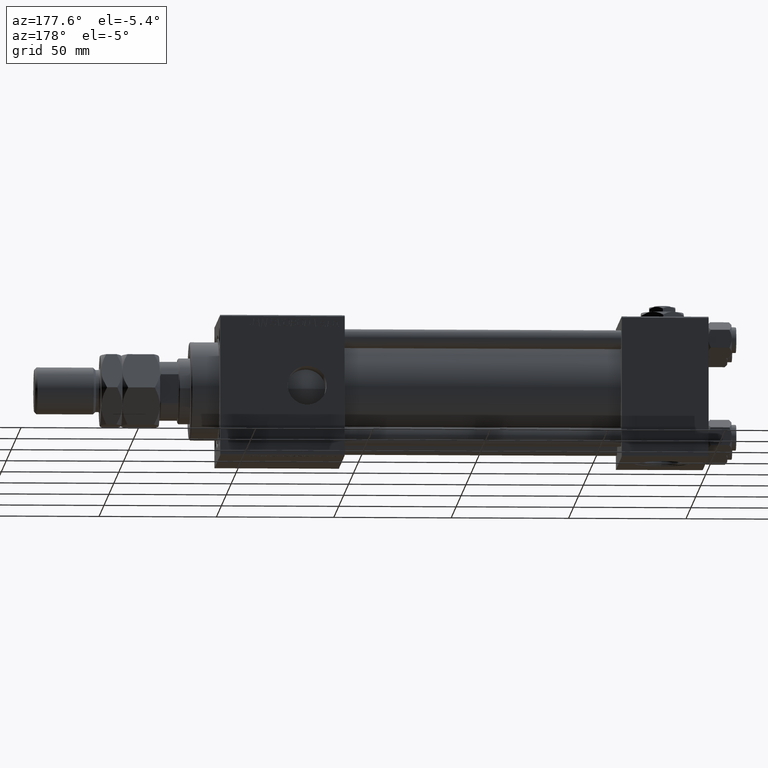
[diagram: clean part render]
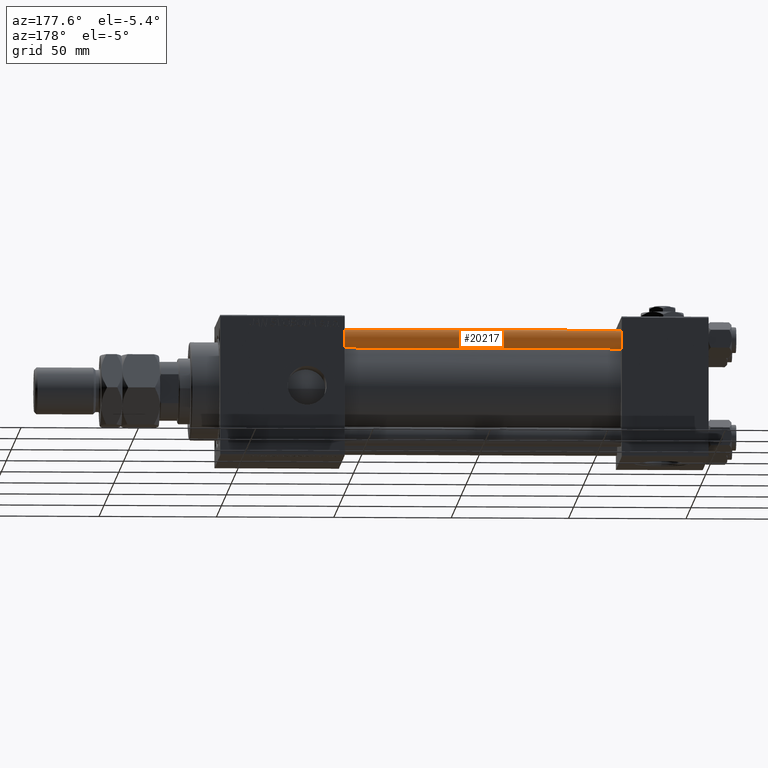
[diagram: same view with one face highlighted and labeled with its STEP entity id]
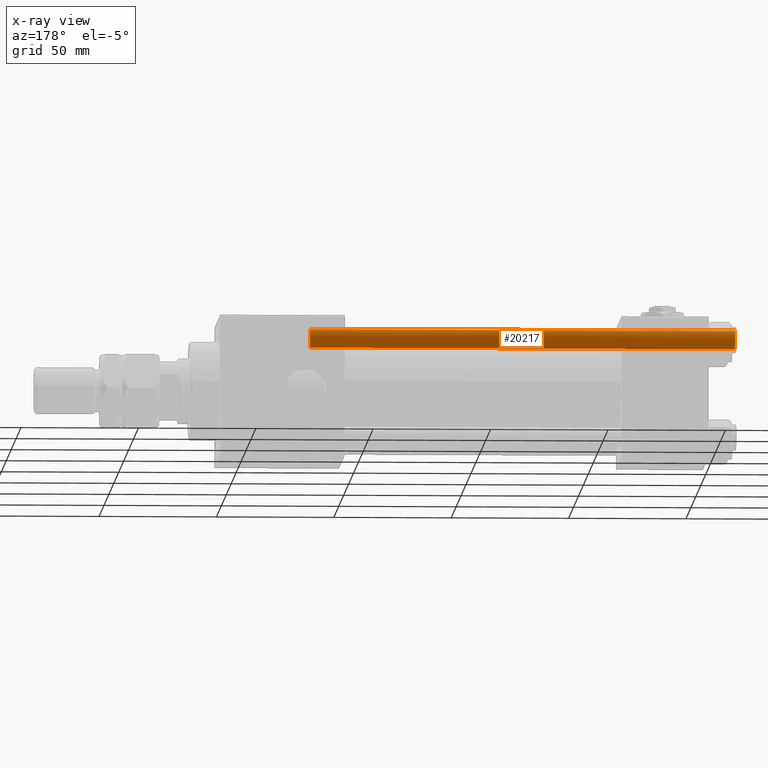
[diagram: x-ray of the same camera — body ghosted, the highlighted face saturated]
A machine part, auxiliary view. The second image highlights one B-rep face of the part: STEP entity #20217.
The next image is the same camera in x-ray: the body ghosted, the highlighted face saturated — about 0% of this face is hidden behind the body in this view.
In plain terms, the highlighted cylindrical surface (edge-blend (fillet) strip) has radius 4 mm, axis along (-1, 0, 0).
Its self-contained STEP definition (entity closure, byte-faithful):
#90 = CIRCLE ( 'NONE', #27782, 4.000000000000000000 ) ;
#367 = AXIS2_PLACEMENT_3D ( 'NONE', #13142, #29664, #51050 ) ;
#1519 = CARTESIAN_POINT ( 'NONE',  ( 0.000000000000000000, 0.000000000000000000, 181.5000000000000284 ) ) ;
#3257 = CARTESIAN_POINT ( 'NONE',  ( 4.000000000000000000, 4.898587196589412829E-16, 0.4999999999999726885 ) ) ;
#4451 = VERTEX_POINT ( 'NONE', #48131 ) ;
#4617 = DIRECTION ( 'NONE',  ( -0.000000000000000000, -0.000000000000000000, -1.000000000000000000 ) ) ;
#4727 = CYLINDRICAL_SURFACE ( 'NONE', #10757, 4.000000000000000000 ) ;
#6289 = FACE_OUTER_BOUND ( 'NONE', #7243, .T. ) ;
#7243 = EDGE_LOOP ( 'NONE', ( #37303, #40364, #33700, #19594 ) ) ;
#10757 = AXIS2_PLACEMENT_3D ( 'NONE', #12876, #37775, #29935 ) ;
#12876 = CARTESIAN_POINT ( 'NONE',  ( 0.000000000000000000, 0.000000000000000000, 182.0000000000000000 ) ) ;
#13142 = CARTESIAN_POINT ( 'NONE',  ( 0.000000000000000000, 0.000000000000000000, 0.4999999999999726885 ) ) ;
#13190 = DIRECTION ( 'NONE',  ( 0.000000000000000000, 0.000000000000000000, -1.000000000000000000 ) ) ;
#13375 = VECTOR ( 'NONE', #22083, 1000.000000000000000 ) ;
#19594 = ORIENTED_EDGE ( 'NONE', *, *, #30848, .F. ) ;
#20217 = ADVANCED_FACE ( 'NONE', ( #6289 ), #4727, .T. ) ;
#22083 = DIRECTION ( 'NONE',  ( -0.000000000000000000, -0.000000000000000000, -1.000000000000000000 ) ) ;
#24989 = EDGE_CURVE ( 'NONE', #51623, #50310, #25483, .T. ) ;
#25094 = EDGE_CURVE ( 'NONE', #4451, #51623, #43455, .T. ) ;
#25383 = DIRECTION ( 'NONE',  ( 1.000000000000000000, 0.000000000000000000, 0.000000000000000000 ) ) ;
#25483 = CIRCLE ( 'NONE', #367, 4.000000000000000000 ) ;
#25634 = CARTESIAN_POINT ( 'NONE',  ( -4.000000000000000000, 0.000000000000000000, 181.5000000000000284 ) ) ;
#27782 = AXIS2_PLACEMENT_3D ( 'NONE', #1519, #13190, #25383 ) ;
#28606 = VERTEX_POINT ( 'NONE', #25634 ) ;
#29664 = DIRECTION ( 'NONE',  ( -0.000000000000000000, -0.000000000000000000, 1.000000000000000000 ) ) ;
#29935 = DIRECTION ( 'NONE',  ( -1.000000000000000000, 0.000000000000000000, 0.000000000000000000 ) ) ;
#30479 = CARTESIAN_POINT ( 'NONE',  ( 4.000000000000000000, 4.898587196589412829E-16, 182.0000000000000000 ) ) ;
#30848 = EDGE_CURVE ( 'NONE', #28606, #50310, #41740, .T. ) ;
#33700 = ORIENTED_EDGE ( 'NONE', *, *, #24989, .T. ) ;
#34363 = VECTOR ( 'NONE', #4617, 1000.000000000000000 ) ;
#37303 = ORIENTED_EDGE ( 'NONE', *, *, #53592, .T. ) ;
#37775 = DIRECTION ( 'NONE',  ( -0.000000000000000000, -0.000000000000000000, -1.000000000000000000 ) ) ;
#40364 = ORIENTED_EDGE ( 'NONE', *, *, #25094, .T. ) ;
#41740 = LINE ( 'NONE', #45521, #34363 ) ;
#43455 = LINE ( 'NONE', #30479, #13375 ) ;
#45521 = CARTESIAN_POINT ( 'NONE',  ( -4.000000000000000000, 0.000000000000000000, 182.0000000000000000 ) ) ;
#48131 = CARTESIAN_POINT ( 'NONE',  ( 4.000000000000000000, 4.898587196589412829E-16, 181.5000000000000284 ) ) ;
#50310 = VERTEX_POINT ( 'NONE', #50911 ) ;
#50911 = CARTESIAN_POINT ( 'NONE',  ( -4.000000000000000000, 0.000000000000000000, 0.4999999999999726885 ) ) ;
#51050 = DIRECTION ( 'NONE',  ( 1.000000000000000000, 0.000000000000000000, 0.000000000000000000 ) ) ;
#51623 = VERTEX_POINT ( 'NONE', #3257 ) ;
#53592 = EDGE_CURVE ( 'NONE', #28606, #4451, #90, .T. ) ;